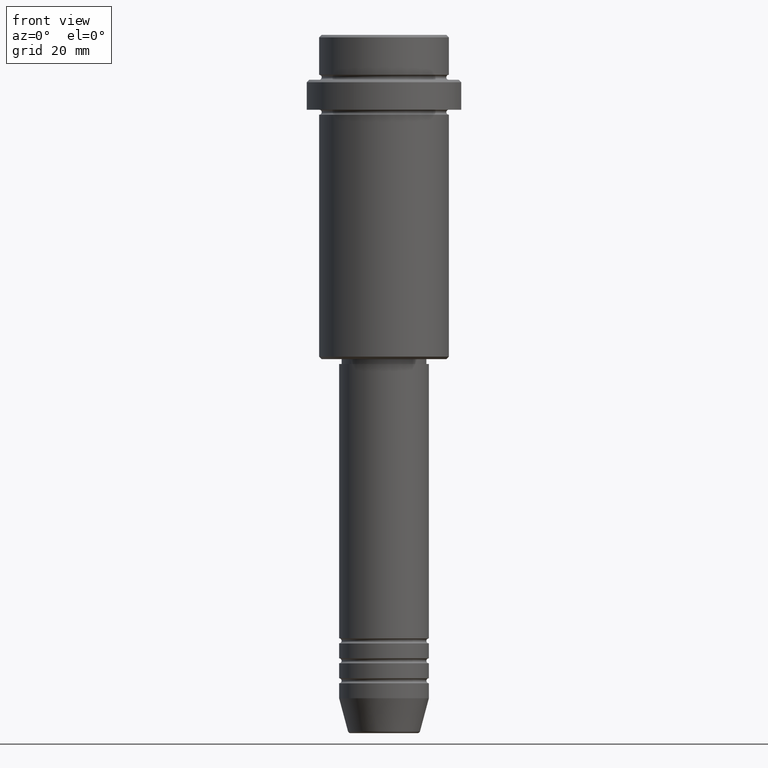
[diagram: clean part render]
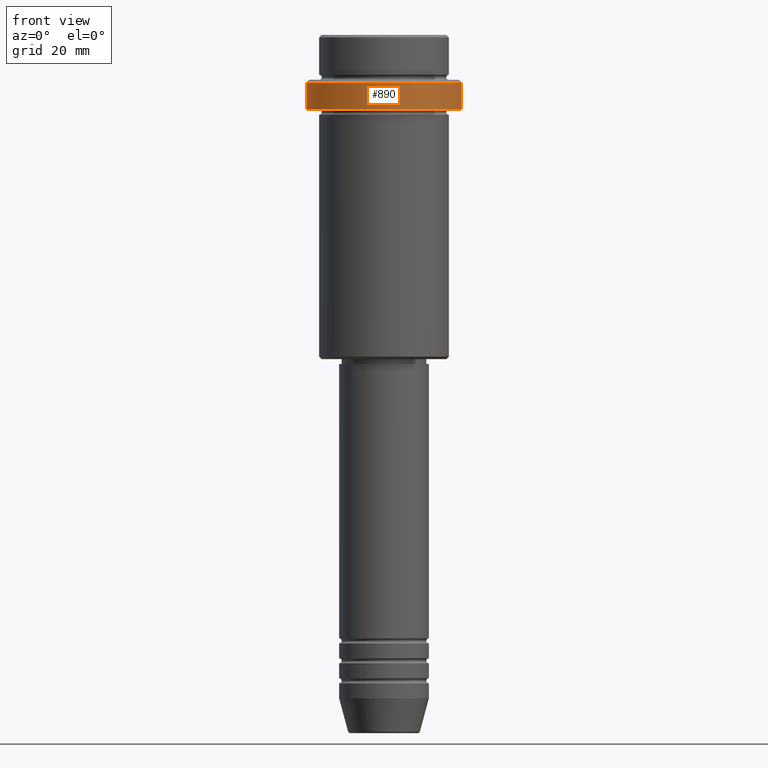
[diagram: same view with one face highlighted and labeled with its STEP entity id]
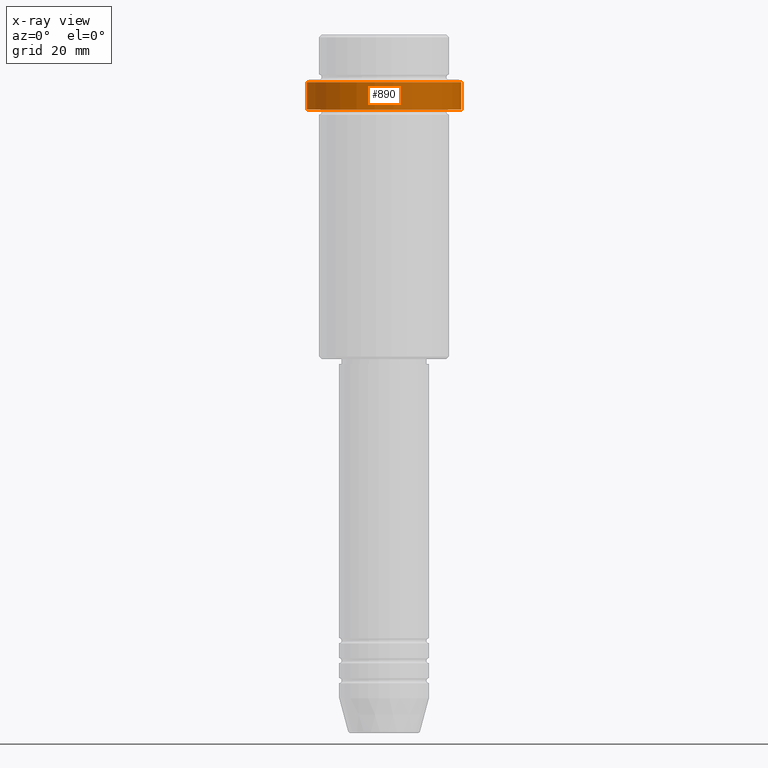
[diagram: x-ray of the same camera — body ghosted, the highlighted face saturated]
A machine part, front view. The second image highlights one B-rep face of the part: STEP entity #890.
The next image is the same camera in x-ray: the body ghosted, the highlighted face saturated — about 0% of this face is hidden behind the body in this view.
In plain terms, the highlighted cylindrical surface (partial cylindrical patch) has radius 15.5 mm, axis along (-0, -0, 1).
Its self-contained STEP definition (entity closure, byte-faithful):
#12 = DIRECTION ( 'NONE',  ( -0.000000000000000000, -0.000000000000000000, 1.000000000000000000 ) ) ;
#18 = CIRCLE ( 'NONE', #1094, 15.50000000000000000 ) ;
#38 = VERTEX_POINT ( 'NONE', #790 ) ;
#89 = DIRECTION ( 'NONE',  ( -0.000000000000000000, -0.000000000000000000, 1.000000000000000000 ) ) ;
#103 = CARTESIAN_POINT ( 'NONE',  ( -15.50000000000000000, 1.898202538678397557E-15, 0.000000000000000000 ) ) ;
#107 = CYLINDRICAL_SURFACE ( 'NONE', #818, 15.50000000000000000 ) ;
#113 = EDGE_CURVE ( 'NONE', #38, #1321, #751, .T. ) ;
#116 = CARTESIAN_POINT ( 'NONE',  ( -15.50000000000000000, 1.898202538678397557E-15, -9.499999999999984013 ) ) ;
#130 = CARTESIAN_POINT ( 'NONE',  ( 0.000000000000000000, 0.000000000000000000, -15.00000000000000000 ) ) ;
#177 = VECTOR ( 'NONE', #89, 1000.000000000000000 ) ;
#178 = VECTOR ( 'NONE', #406, 1000.000000000000000 ) ;
#208 = LINE ( 'NONE', #1092, #178 ) ;
#335 = FACE_OUTER_BOUND ( 'NONE', #474, .T. ) ;
#378 = ORIENTED_EDGE ( 'NONE', *, *, #421, .T. ) ;
#406 = DIRECTION ( 'NONE',  ( -0.000000000000000000, -0.000000000000000000, 1.000000000000000000 ) ) ;
#421 = EDGE_CURVE ( 'NONE', #1379, #535, #18, .T. ) ;
#442 = EDGE_CURVE ( 'NONE', #38, #535, #850, .T. ) ;
#474 = EDGE_LOOP ( 'NONE', ( #915, #622, #510, #378 ) ) ;
#510 = ORIENTED_EDGE ( 'NONE', *, *, #832, .T. ) ;
#513 = DIRECTION ( 'NONE',  ( 1.000000000000000000, 0.000000000000000000, 0.000000000000000000 ) ) ;
#535 = VERTEX_POINT ( 'NONE', #116 ) ;
#550 = CARTESIAN_POINT ( 'NONE',  ( 0.000000000000000000, 0.000000000000000000, 0.000000000000000000 ) ) ;
#557 = CARTESIAN_POINT ( 'NONE',  ( 15.50000000000000000, 0.000000000000000000, -15.00000000000000000 ) ) ;
#567 = DIRECTION ( 'NONE',  ( -0.000000000000000000, -0.000000000000000000, 1.000000000000000000 ) ) ;
#622 = ORIENTED_EDGE ( 'NONE', *, *, #113, .T. ) ;
#751 = CIRCLE ( 'NONE', #1189, 15.50000000000000000 ) ;
#790 = CARTESIAN_POINT ( 'NONE',  ( -15.50000000000000000, 1.898202538678397557E-15, -15.00000000000000000 ) ) ;
#818 = AXIS2_PLACEMENT_3D ( 'NONE', #550, #12, #1218 ) ;
#832 = EDGE_CURVE ( 'NONE', #1321, #1379, #208, .T. ) ;
#850 = LINE ( 'NONE', #103, #177 ) ;
#890 = ADVANCED_FACE ( 'NONE', ( #335 ), #107, .T. ) ;
#915 = ORIENTED_EDGE ( 'NONE', *, *, #442, .F. ) ;
#975 = CARTESIAN_POINT ( 'NONE',  ( 15.50000000000000000, 0.000000000000000000, -9.499999999999984013 ) ) ;
#1054 = DIRECTION ( 'NONE',  ( 0.000000000000000000, 0.000000000000000000, -1.000000000000000000 ) ) ;
#1062 = CARTESIAN_POINT ( 'NONE',  ( 0.000000000000000000, 0.000000000000000000, -9.499999999999984013 ) ) ;
#1092 = CARTESIAN_POINT ( 'NONE',  ( 15.50000000000000000, 0.000000000000000000, 0.000000000000000000 ) ) ;
#1094 = AXIS2_PLACEMENT_3D ( 'NONE', #1062, #1054, #513 ) ;
#1189 = AXIS2_PLACEMENT_3D ( 'NONE', #130, #567, #1229 ) ;
#1218 = DIRECTION ( 'NONE',  ( 1.000000000000000000, 0.000000000000000000, 0.000000000000000000 ) ) ;
#1229 = DIRECTION ( 'NONE',  ( 1.000000000000000000, 0.000000000000000000, 0.000000000000000000 ) ) ;
#1321 = VERTEX_POINT ( 'NONE', #557 ) ;
#1379 = VERTEX_POINT ( 'NONE', #975 ) ;